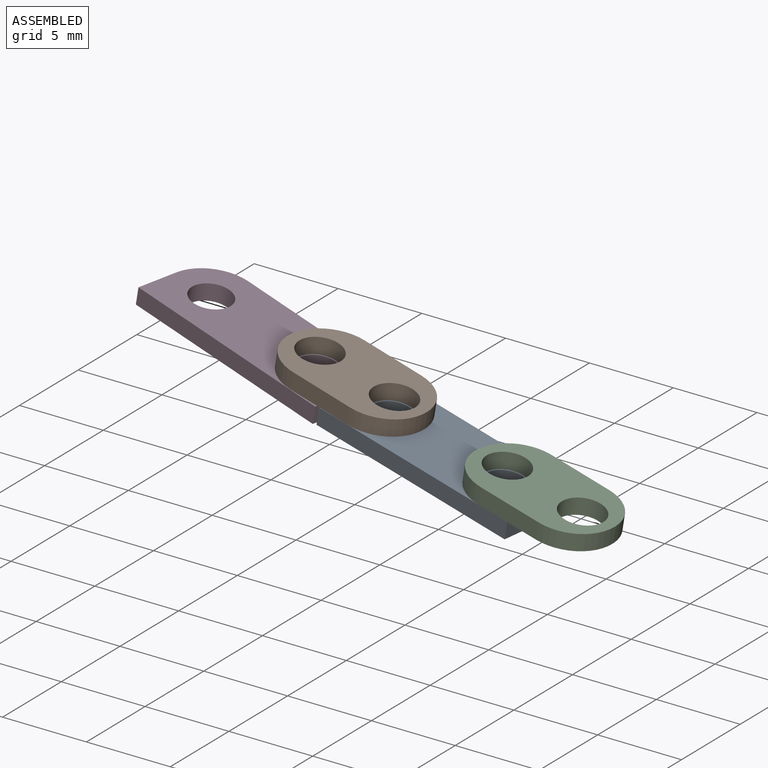
[diagram: assembled view]
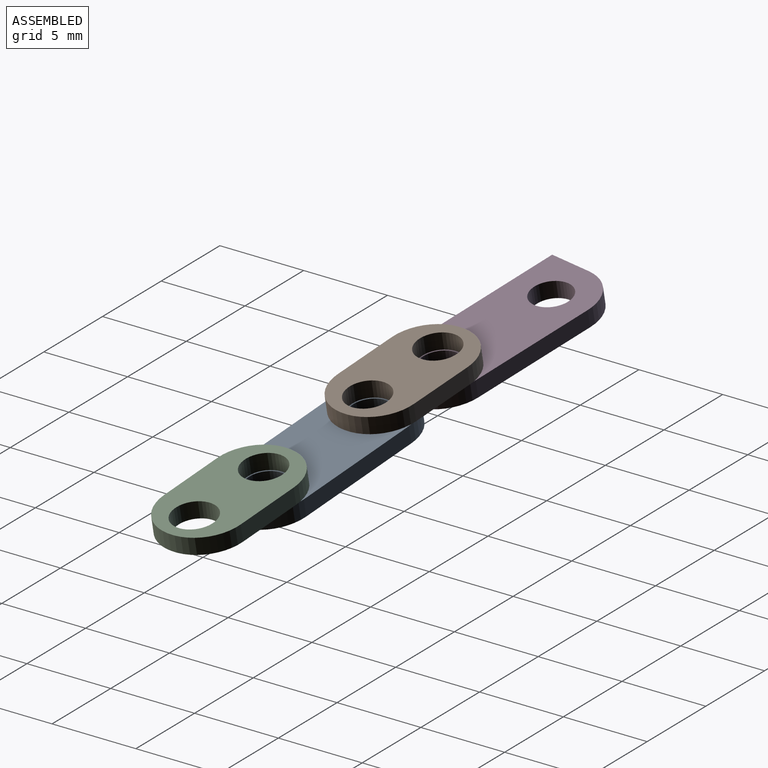
[diagram: assembled view, second angle]
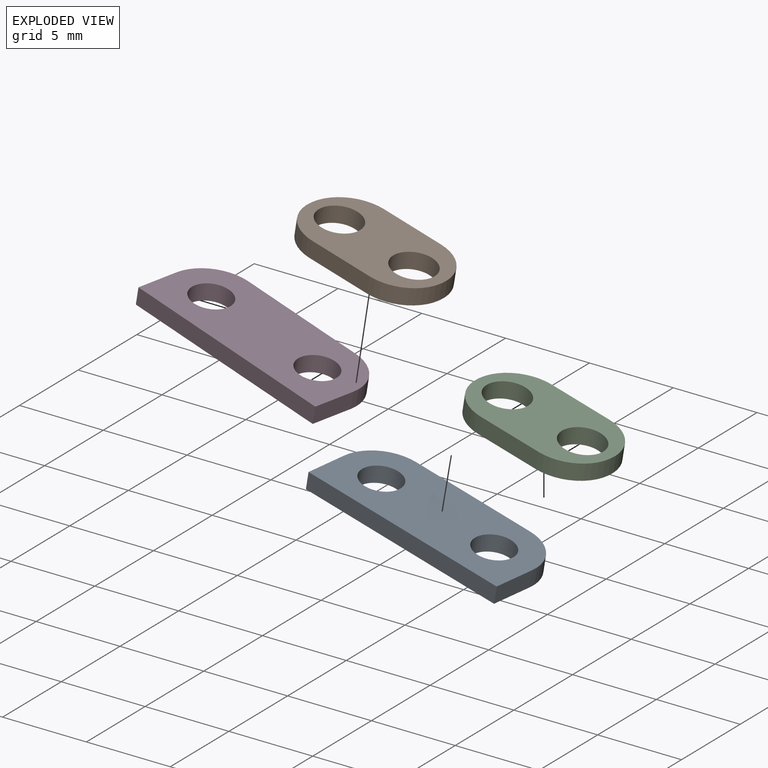
[diagram: exploded view]
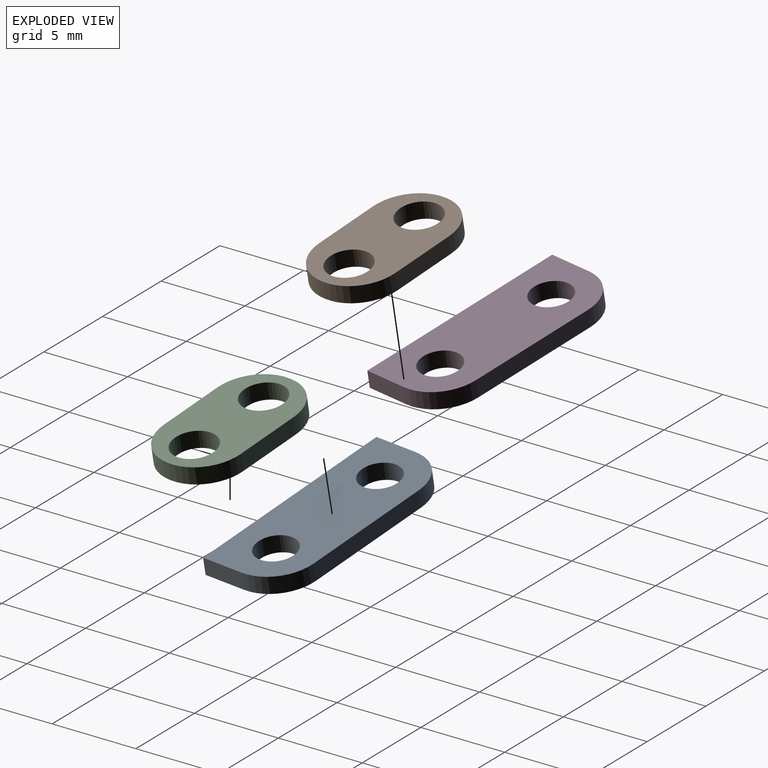
[diagram: exploded view, second angle]
ASSEMBLY  parts=4 mates=4
PART A: 10 faces, bbox 12.7x5.1x1 mm
  f0: plane 2.58x1mm, normal (1,0,0), area 2.6mm2, adj f4,f6,f7,f8
  f1: plane 7.7x1mm, normal (0,1,0), area 7.7mm2, adj f6,f7,f8,f9
  f2: plane 2.58x1mm, normal (-1,0,0), area 2.6mm2, adj f4,f6,f7,f9
  f3: cylinder r=1.18mm len=2.37mm, axis (0,0,-1), area 7.4mm2, adj f6,f7
  f4: plane 12.7x1mm, normal (0,-1,0), area 12.7mm2, adj f0,f2,f6,f7
  f5: cylinder r=1.18mm len=2.37mm, axis (0,0,-1), area 7.4mm2, adj f6,f7
  f6: plane 12.7x5.08mm, normal (0,0,1), area 53mm2, adj f0,f1,f2,f3,f4,f5,f8,f9
  f7: plane 12.7x5.08mm, normal (0,0,-1), area 53mm2, adj f0,f1,f2,f3,f4,f5,f8,f9
  f8: cylinder r=2.5mm len=2.5mm, axis (0,0,-1), area 3.9mm2, adj f0,f1,f6,f7
  f9: cylinder r=2.5mm len=2.5mm, axis (0,0,1), area 3.9mm2, adj f1,f2,f6,f7
PART B: 12 faces, bbox 8.9x5.1x1 mm
  f0: plane 1x0.08mm, normal (1,0,0), area 0.1mm2, adj f6,f7,f8,f11
  f1: plane 3.89x1mm, normal (0,1,0), area 3.9mm2, adj f6,f7,f8,f9
  f2: plane 1x0.08mm, normal (-1,0,0), area 0.1mm2, adj f6,f7,f9,f10
  f3: cylinder r=1.27mm len=2.54mm, axis (0,0,-1), area 8mm2, adj f6,f7
  f4: plane 3.89x1mm, normal (0,-1,0), area 3.9mm2, adj f6,f7,f10,f11
  f5: cylinder r=1.27mm len=2.54mm, axis (0,0,-1), area 8mm2, adj f6,f7
  f6: plane 8.89x5.08mm, normal (0,0,1), area 29.7mm2, adj f0,f1,f2,f3,f4,f5,f8,f9
  f7: plane 8.89x5.08mm, normal (0,0,-1), area 29.7mm2, adj f0,f1,f2,f3,f4,f5,f8,f9
  f8: cylinder r=2.5mm len=2.5mm, axis (0,0,-1), area 3.9mm2, adj f0,f1,f6,f7
  f9: cylinder r=2.5mm len=2.5mm, axis (0,0,1), area 3.9mm2, adj f1,f2,f6,f7
  f10: cylinder r=2.5mm len=2.5mm, axis (0,0,-1), area 3.9mm2, adj f2,f4,f6,f7
  f11: cylinder r=2.5mm len=2.5mm, axis (0,0,1), area 3.9mm2, adj f0,f4,f6,f7
PART C: same geometry as B
PART D: same geometry as A
PLACE A rot(axis=(0.06,0.79,-0.6),12.7deg) t=(13.34,-4.15,-2.79)mm
PLACE B rot(axis=(0.06,0.77,-0.63),13deg) t=(7.32,-3.31,-0.7)mm
PLACE C rot(axis=(0.06,0.79,-0.6),12.7deg) t=(19.71,-5,-2.92)mm
PLACE D rot(axis=(0.03,0.67,-0.74),15.1deg) t=(0.99,-2.19,-0.57)mm
MATE revolute C.f3 <-> A.f5  axis (-0.17,0.03,-0.98) through (17.23,-4.67,-2.48)mm
MATE planar A.f6 <-> D.f6  axis (0.17,-0.03,0.98) through (13.5,-4.27,-1.81)mm
MATE revolute B.f5 <-> A.f3  axis (-0.17,0.03,-0.98) through (9.79,-3.67,-1.14)mm
MATE revolute B.f3 <-> D.f5  axis (-0.17,0.03,-0.98) through (4.84,-2.95,-0.25)mm
